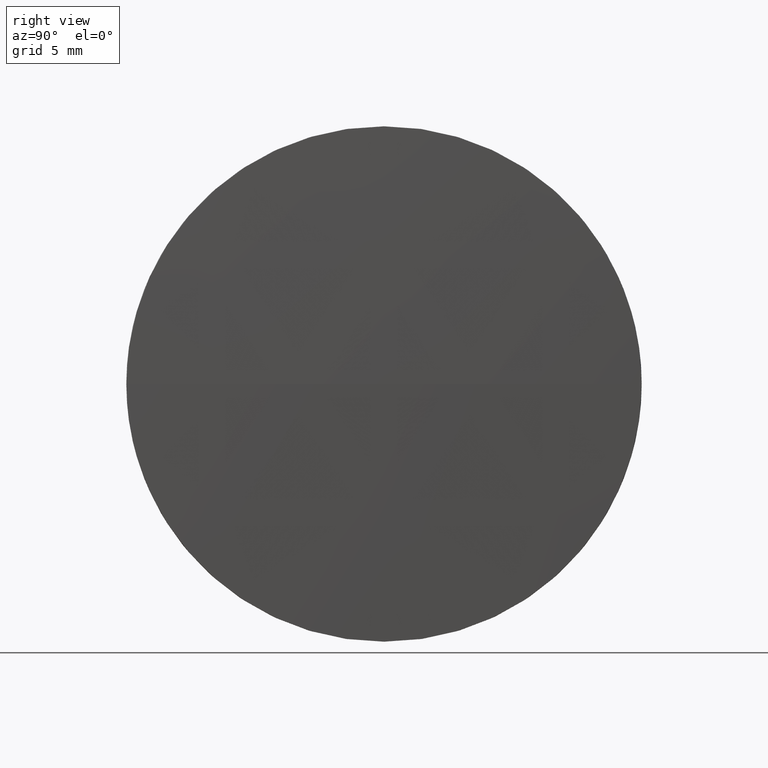
[diagram: clean part render]
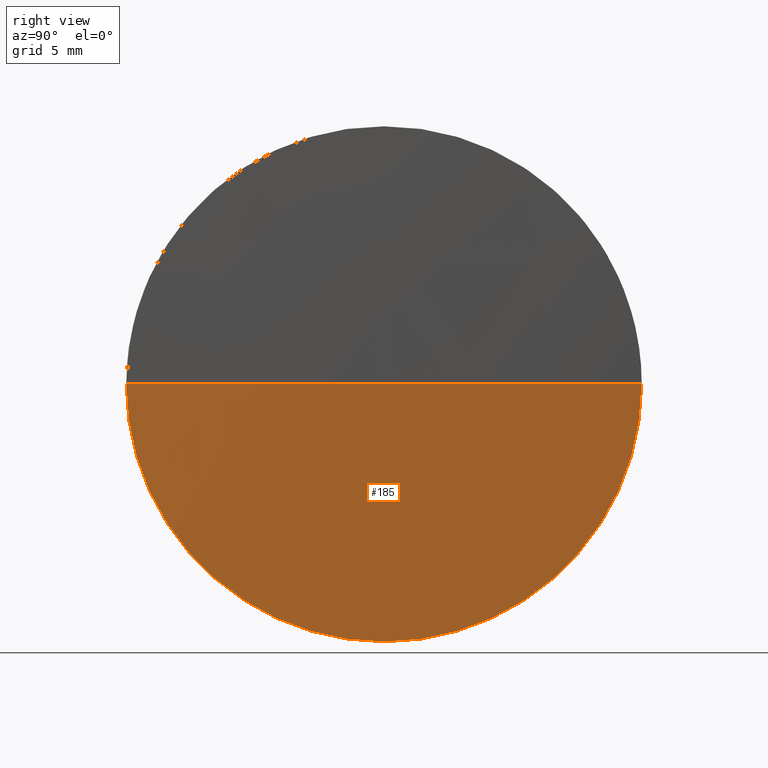
[diagram: same view with one face highlighted and labeled with its STEP entity id]
A machine part, right view. The second image highlights one B-rep face of the part: STEP entity #185.
In plain terms, the highlighted spherical surface has radius 403.325 mm.
Its self-contained STEP definition (entity closure, byte-faithful):
#2 = DIRECTION ( 'NONE',  ( 0.0000000000000000000, -1.224646799147353200E-016, 1.000000000000000000 ) ) ;
#4 = DIRECTION ( 'NONE',  ( 0.0000000000000000000, -1.000000000000000000, 0.0000000000000000000 ) ) ;
#9 = EDGE_CURVE ( 'NONE', #121, #133, #85, .T. ) ;
#17 = EDGE_CURVE ( 'NONE', #39, #51, #90, .T. ) ;
#19 = ORIENTED_EDGE ( 'NONE', *, *, #86, .T. ) ;
#26 = CIRCLE ( 'NONE', #46, 12.70000000000000300 ) ;
#28 = DIRECTION ( 'NONE',  ( 0.0000000000000000000, -1.000000000000000000, -1.224646799147353200E-016 ) ) ;
#35 = AXIS2_PLACEMENT_3D ( 'NONE', #119, #103, #53 ) ;
#39 = VERTEX_POINT ( 'NONE', #136 ) ;
#46 = AXIS2_PLACEMENT_3D ( 'NONE', #118, #149, #148 ) ;
#49 = EDGE_CURVE ( 'NONE', #51, #121, #26, .T. ) ;
#51 = VERTEX_POINT ( 'NONE', #137 ) ;
#53 = DIRECTION ( 'NONE',  ( -1.000000000000000000, 0.0000000000000000000, 0.0000000000000000000 ) ) ;
#63 = AXIS2_PLACEMENT_3D ( 'NONE', #79, #124, #4 ) ;
#64 = SPHERICAL_SURFACE ( 'NONE', #63, 403.3249999999947000 ) ;
#78 = ORIENTED_EDGE ( 'NONE', *, *, #49, .F. ) ;
#79 = CARTESIAN_POINT ( 'NONE',  ( -284.4549532240514500, 65.23355492641265100, 0.0000000000000000000 ) ) ;
#85 = CIRCLE ( 'NONE', #175, 12.70000000000000300 ) ;
#86 = EDGE_CURVE ( 'NONE', #39, #133, #183, .T. ) ;
#88 = CARTESIAN_POINT ( 'NONE',  ( 118.6700467759432500, 65.23355492641219700, 0.0000000000000000000 ) ) ;
#90 = CIRCLE ( 'NONE', #161, 403.3249999999947000 ) ;
#103 = DIRECTION ( 'NONE',  ( 0.0000000000000000000, 0.0000000000000000000, -1.000000000000000000 ) ) ;
#104 = DIRECTION ( 'NONE',  ( 0.0000000000000000000, 0.0000000000000000000, 1.000000000000000000 ) ) ;
#116 = ORIENTED_EDGE ( 'NONE', *, *, #9, .F. ) ;
#118 = CARTESIAN_POINT ( 'NONE',  ( 118.6700467759432500, 65.23355492641219700, 0.0000000000000000000 ) ) ;
#119 = CARTESIAN_POINT ( 'NONE',  ( -284.4549532240514500, 65.23355492641265100, 0.0000000000000000000 ) ) ;
#121 = VERTEX_POINT ( 'NONE', #180 ) ;
#124 = DIRECTION ( 'NONE',  ( 0.0000000000000000000, 0.0000000000000000000, 1.000000000000000000 ) ) ;
#133 = VERTEX_POINT ( 'NONE', #139 ) ;
#136 = CARTESIAN_POINT ( 'NONE',  ( 118.8700467759432700, 65.23355492641262300, 0.0000000000000000000 ) ) ;
#137 = CARTESIAN_POINT ( 'NONE',  ( 118.6700467759432300, 77.93355492641259700, 1.555301434917131100E-015 ) ) ;
#139 = CARTESIAN_POINT ( 'NONE',  ( 118.6700467759432300, 52.53355492641226500, 0.0000000000000000000 ) ) ;
#142 = EDGE_LOOP ( 'NONE', ( #169, #19, #116, #78 ) ) ;
#143 = FACE_OUTER_BOUND ( 'NONE', #142, .T. ) ;
#144 = CARTESIAN_POINT ( 'NONE',  ( -284.4549532240514500, 65.23355492641265100, 0.0000000000000000000 ) ) ;
#148 = DIRECTION ( 'NONE',  ( 0.0000000000000000000, 0.0000000000000000000, 1.000000000000000000 ) ) ;
#149 = DIRECTION ( 'NONE',  ( -1.000000000000000000, -0.0000000000000000000, -0.0000000000000000000 ) ) ;
#161 = AXIS2_PLACEMENT_3D ( 'NONE', #144, #2, #28 ) ;
#169 = ORIENTED_EDGE ( 'NONE', *, *, #17, .F. ) ;
#175 = AXIS2_PLACEMENT_3D ( 'NONE', #88, #178, #104 ) ;
#178 = DIRECTION ( 'NONE',  ( -1.000000000000000000, -0.0000000000000000000, -0.0000000000000000000 ) ) ;
#180 = CARTESIAN_POINT ( 'NONE',  ( 118.6700467759432500, 65.23355492641219700, -12.70000000000000300 ) ) ;
#183 = CIRCLE ( 'NONE', #35, 403.3249999999947000 ) ;
#185 = ADVANCED_FACE ( 'NONE', ( #143 ), #64, .T. ) ;